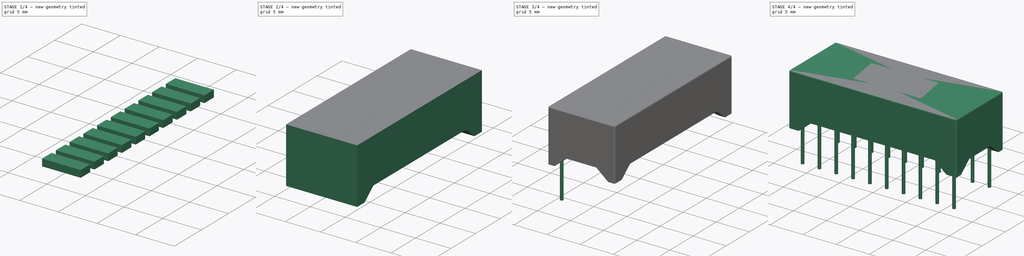
[diagram: build sequence overview — one tinted view per stage of 4, left to right]
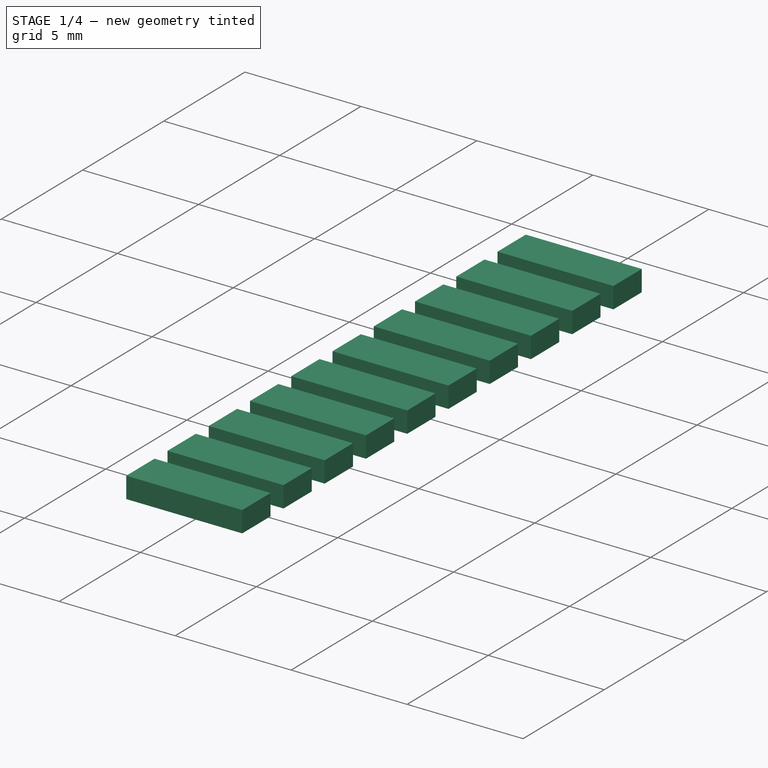
[diagram: stage 1 of 4 — iso view after this stage's code; geometry added in this stage tinted green]
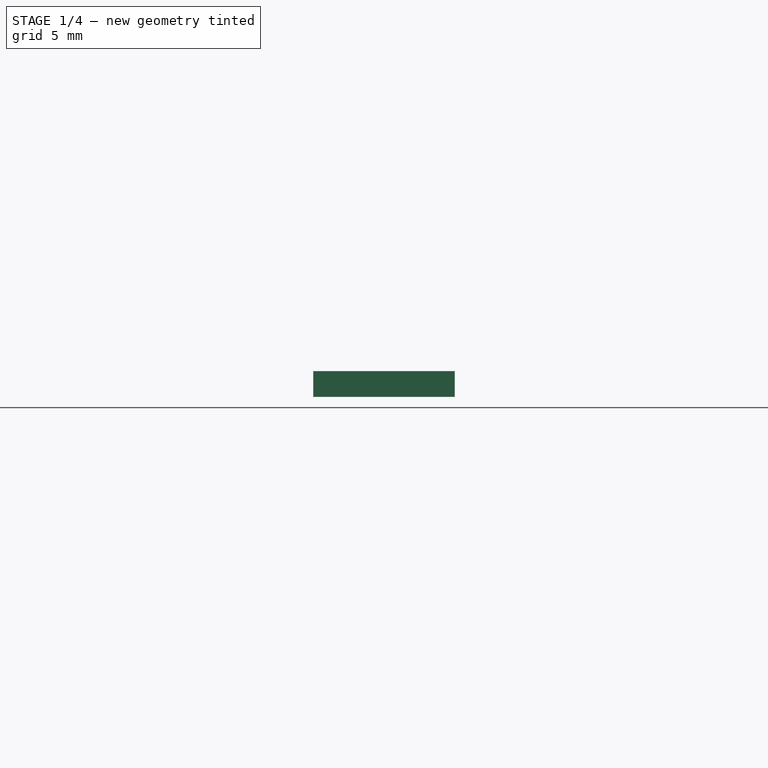
[diagram: stage 1 of 4 — front view after this stage's code; geometry added in this stage tinted green]
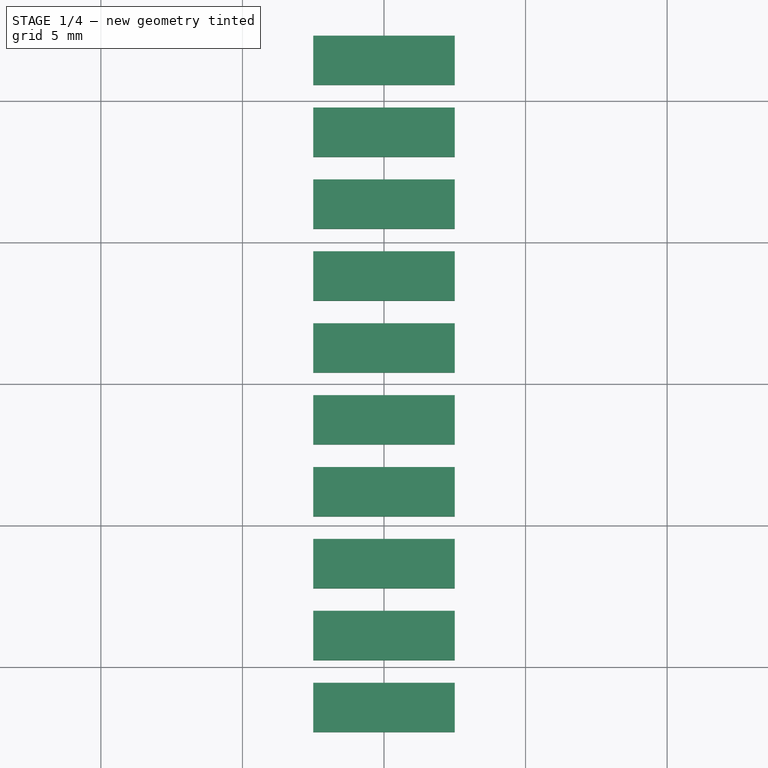
[diagram: stage 1 of 4 — top view after this stage's code; geometry added in this stage tinted green]
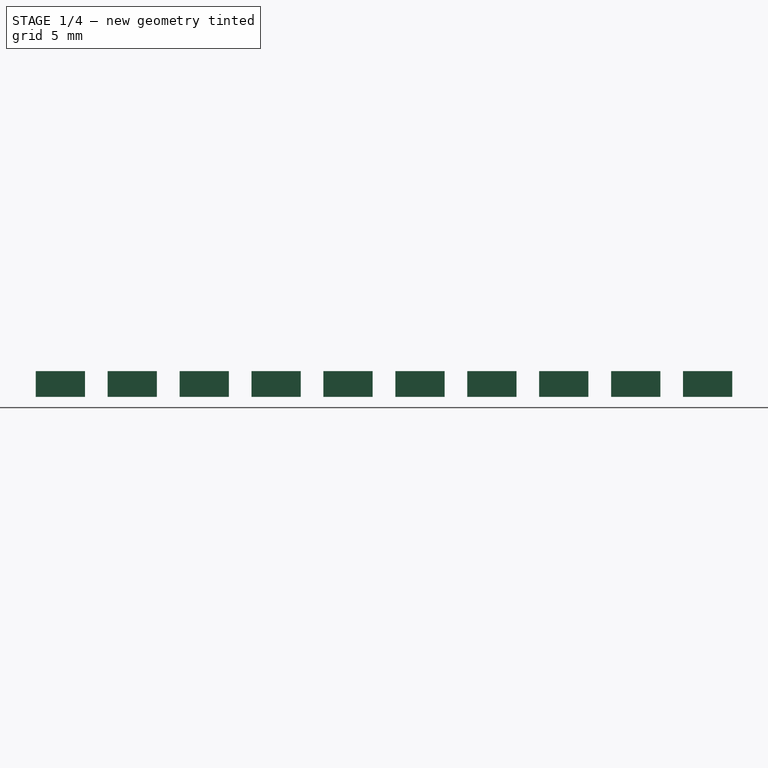
[diagram: stage 1 of 4 — right view after this stage's code; geometry added in this stage tinted green]
FCSTD DOCUMENT  (FreeCAD 0.16R6707 (Git))
Label: bargraph
License: CreativeCommons Attribution-ShareAlike
LicenseURL: http://creativecommons.org/licenses/by-sa/4.0/
objects: Part::Box×2, Sketcher::SketchObject×2, PartDesign::Pocket×2, Part::FeaturePython×2, Part::Cylinder×1, PartDesign::Fillet×1, Part::MultiFuse×1
note: 13 computed .brp shape members not serialized (recipe doc carries the construction recipe); baked Part::Feature solids carry a one-line shape summary decoded from their .brp

FEATURE [Part::Box] Box001  label="led"
  Height = 0.91
  Length = 5
  Placement = pos=(-2.5,-12.3,7) rot=(0,0,1;0rad)
  Width = 1.74
FEATURE [Part::FeaturePython] Array001  label="leds"  # Draft array (typed FeaturePython)
  Angle = 360
  ArrayType = 0
  Axis = (0,0,1)
  Base = -> Box001
  Center = (0,0,0)
  Fuse = false
  IntervalAxis = (0,0,0)
  IntervalX = (0,0,0)
  IntervalY = (0,2.54,0)
  IntervalZ = (0,0,0)
  NumberPolar = 1
  NumberX = 1
  NumberY = 10
  NumberZ = 1
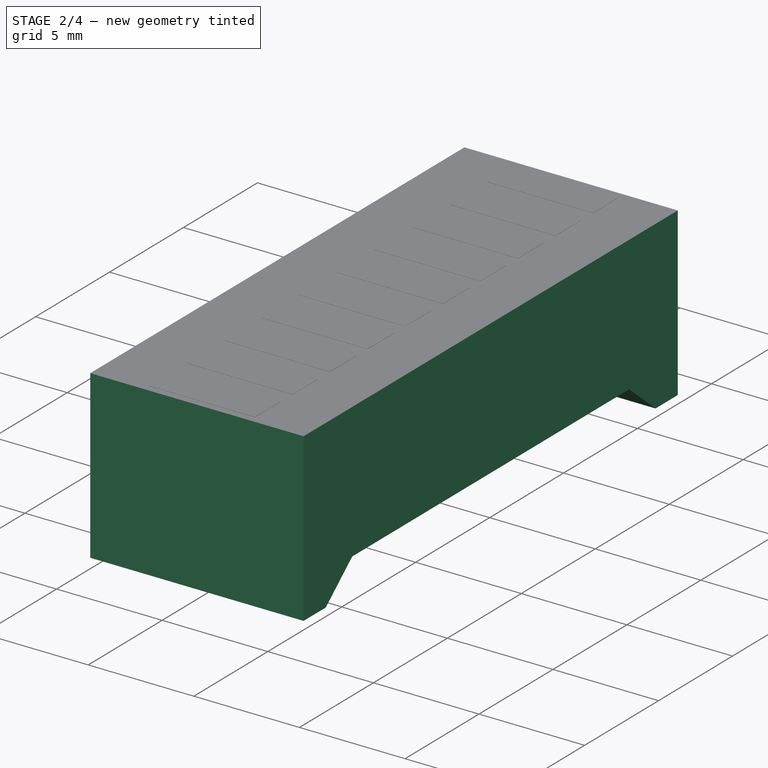
[diagram: stage 2 of 4 — iso view after this stage's code; geometry added in this stage tinted green]
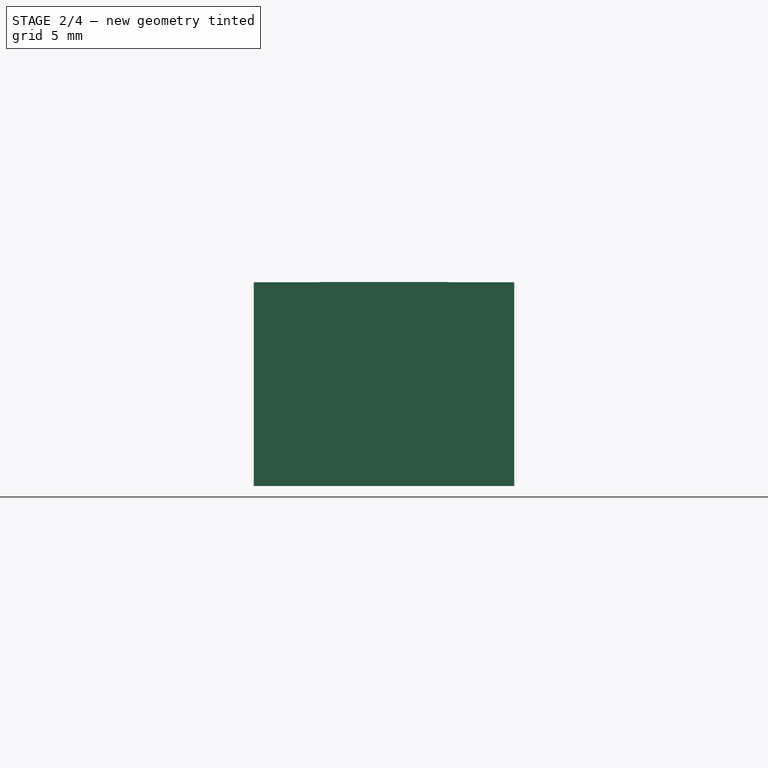
[diagram: stage 2 of 4 — front view after this stage's code; geometry added in this stage tinted green]
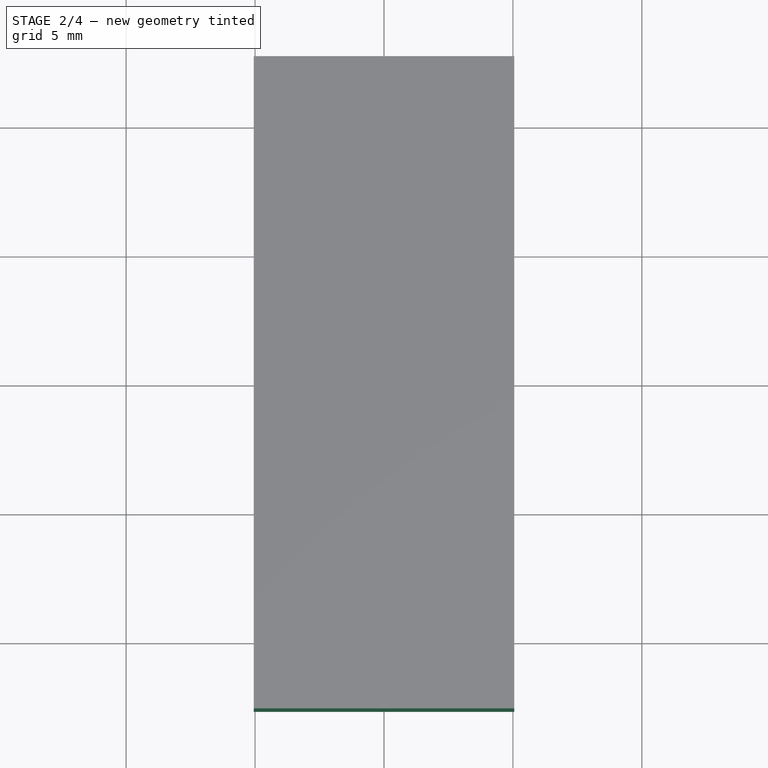
[diagram: stage 2 of 4 — top view after this stage's code; geometry added in this stage tinted green]
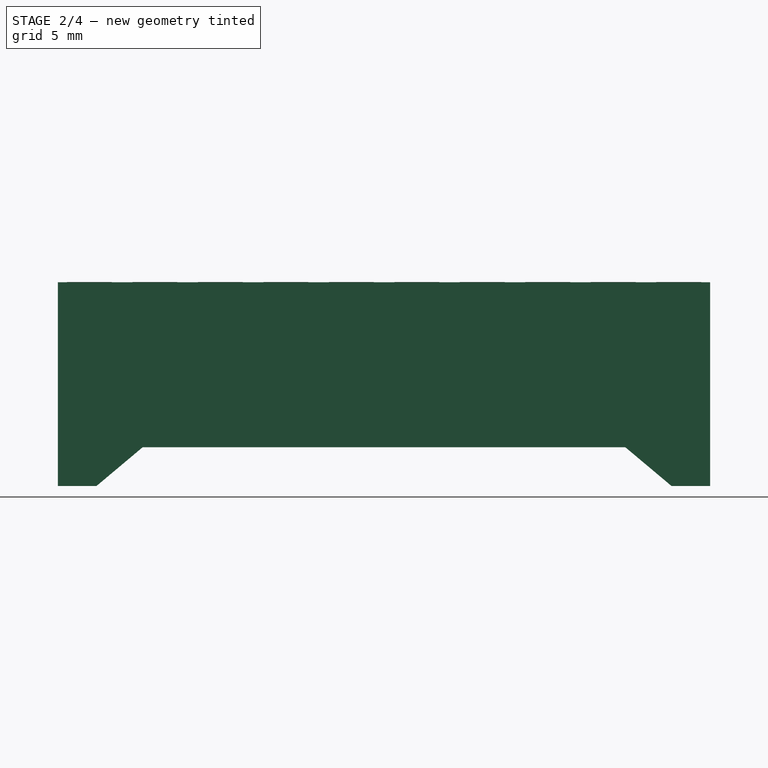
[diagram: stage 2 of 4 — right view after this stage's code; geometry added in this stage tinted green]
FEATURE [Part::Box] Box  label="Cubo"
  Height = 7.9
  Length = 10.1
  Placement = pos=(-5.05,-12.65,0) rot=(0,0,1;0rad)
  Width = 25.3
FEATURE [Sketcher::SketchObject] Sketch
  Placement = pos=(5.05,-12.65,0) rot=(0.57735,0.57735,0.57735;2.0944rad)
  Support = -> Box [Face2]
  sketch-geometry (4):
    g0: LineSegment StartX=1.5 StartY=0 StartZ=0 EndX=3.28763 EndY=1.5 EndZ=0
    g1: LineSegment StartX=3.28763 StartY=1.5 StartZ=0 EndX=22.0124 EndY=1.5 EndZ=0
    g2: LineSegment StartX=22.0124 StartY=1.5 StartZ=0 EndX=23.8 EndY=0 EndZ=0
    g3: LineSegment StartX=23.8 StartY=0 StartZ=0 EndX=1.5 EndY=0 EndZ=0
  constraints (12):
    c: PointOnObject(g0,g-1)
    c: Coincident(g0,g1)
    c: Horizontal(g1)
    c: Coincident(g1,g2)
    c: Coincident(g2,g3)
    c: Coincident(g3,g0)
    c: Horizontal(g3)
    c: DistanceX(g3,g3) = 22.3
    c: DistanceX(g-1,g0) = 1.5
    c: Angle(g3,g0) = 0.698132
    c: Angle(g2,g3) = 0.698132
    c: DistanceY(g0,g0) = 1.5
FEATURE [PartDesign::Pocket] Pocket
  Length = 5
  Placement = pos=(-5.05,-12.65,0) rot=(0,0,1;0rad)
  Sketch = -> Sketch
  Type = 1
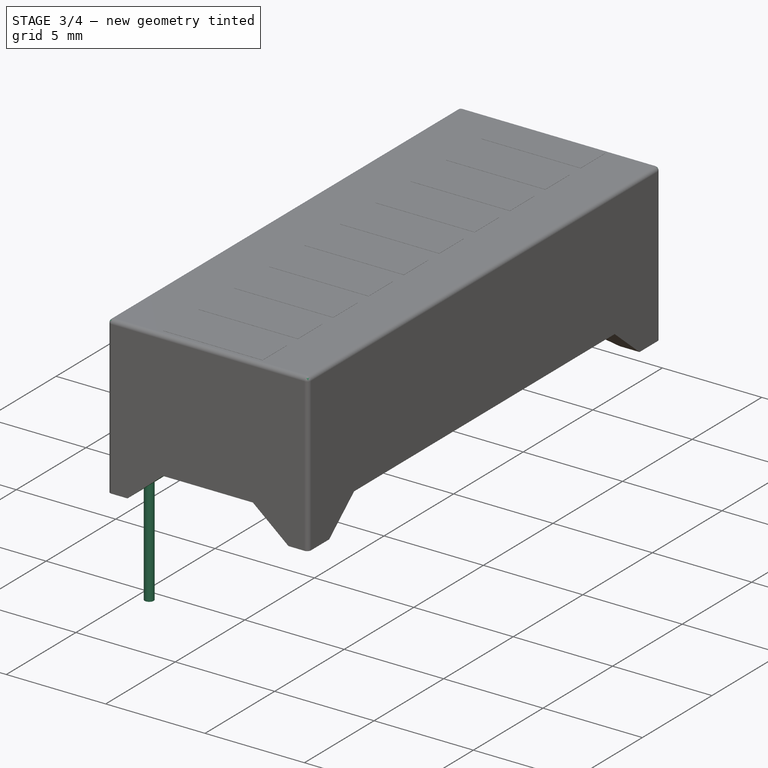
[diagram: stage 3 of 4 — iso view after this stage's code; geometry added in this stage tinted green]
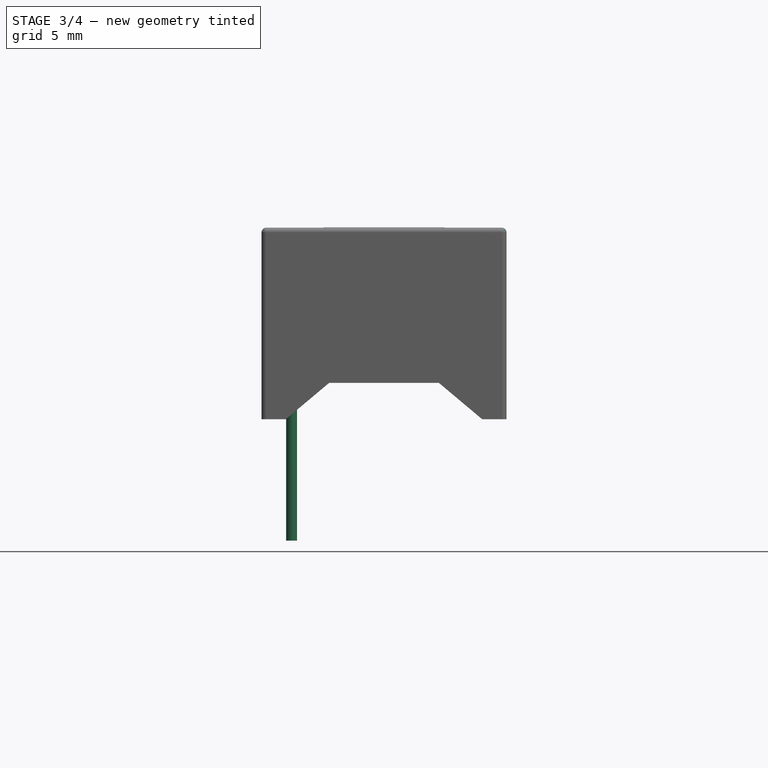
[diagram: stage 3 of 4 — front view after this stage's code; geometry added in this stage tinted green]
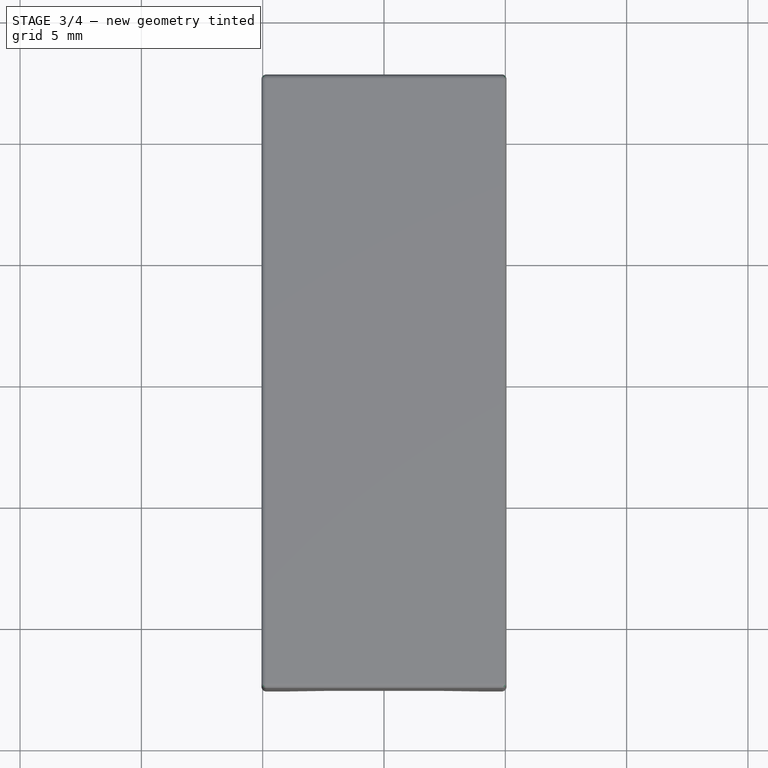
[diagram: stage 3 of 4 — top view after this stage's code; geometry added in this stage tinted green]
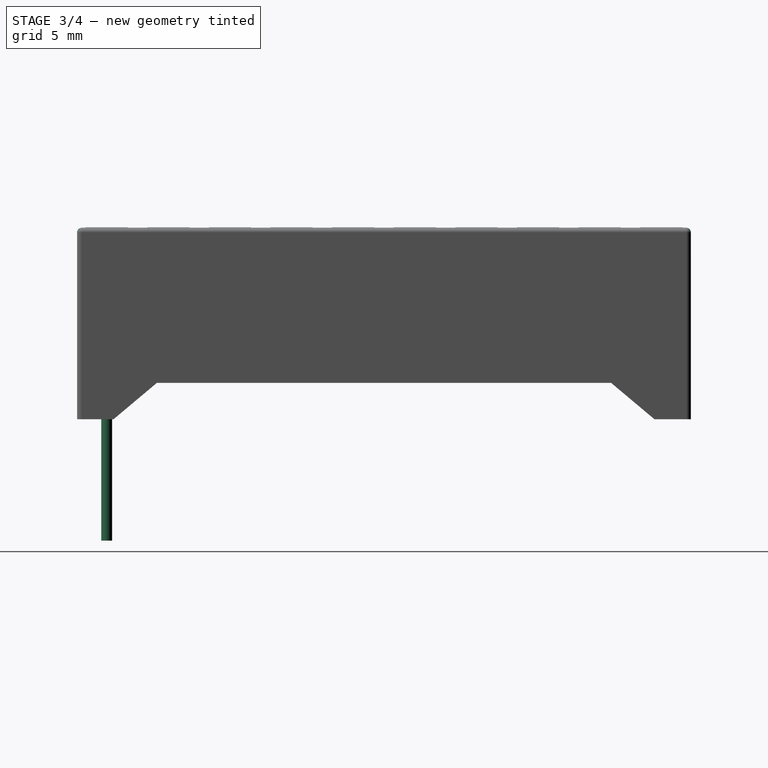
[diagram: stage 3 of 4 — right view after this stage's code; geometry added in this stage tinted green]
FEATURE [Sketcher::SketchObject] Sketch001
  Placement = pos=(-5.05,-12.65,0) rot=(1,0,0;1.5708rad)
  Support = -> Pocket [Face9]
  sketch-geometry (4):
    g0: LineSegment StartX=1 StartY=0 StartZ=0 EndX=2.78763 EndY=1.5 EndZ=0
    g1: LineSegment StartX=2.78763 StartY=1.5 StartZ=0 EndX=7.31237 EndY=1.5 EndZ=0
    g2: LineSegment StartX=7.31237 StartY=1.5 StartZ=0 EndX=9.1 EndY=0 EndZ=0
    g3: LineSegment StartX=9.1 StartY=0 StartZ=0 EndX=1 EndY=0 EndZ=0
  constraints (12):
    c: PointOnObject(g0,g-1)
    c: Coincident(g0,g1)
    c: Horizontal(g1)
    c: Coincident(g1,g2)
    c: Coincident(g2,g3)
    c: Coincident(g3,g0)
    c: Horizontal(g3)
    c: DistanceX(g-1,g0) = 1
    c: DistanceX(g3,g3) = 8.1
    c: Angle(g3,g0) = 0.698132
    c: Angle(g2,g3) = 0.698132
    c: DistanceY(g0,g0) = 1.5
FEATURE [PartDesign::Pocket] Pocket001
  Length = 5
  Placement = pos=(-5.05,-12.65,0) rot=(0,0,1;0rad)
  Sketch = -> Sketch001
  Type = 1
FEATURE [Part::Cylinder] Cylinder  label="Cilindro"
  Angle = 360
  Height = 10
  Placement = pos=(-3.81,-11.43,-5) rot=(0,0,1;0rad)
  Radius = 0.225
FEATURE [PartDesign::Fillet] Fillet  label="cuerpo"
  Base = -> Pocket001 [Edge17,Edge2,Edge9,Edge1,Edge10,Edge31,Edge11,Edge8]
  Placement = pos=(-5.05,-12.65,0) rot=(0,0,1;0rad)
  Radius = 0.2
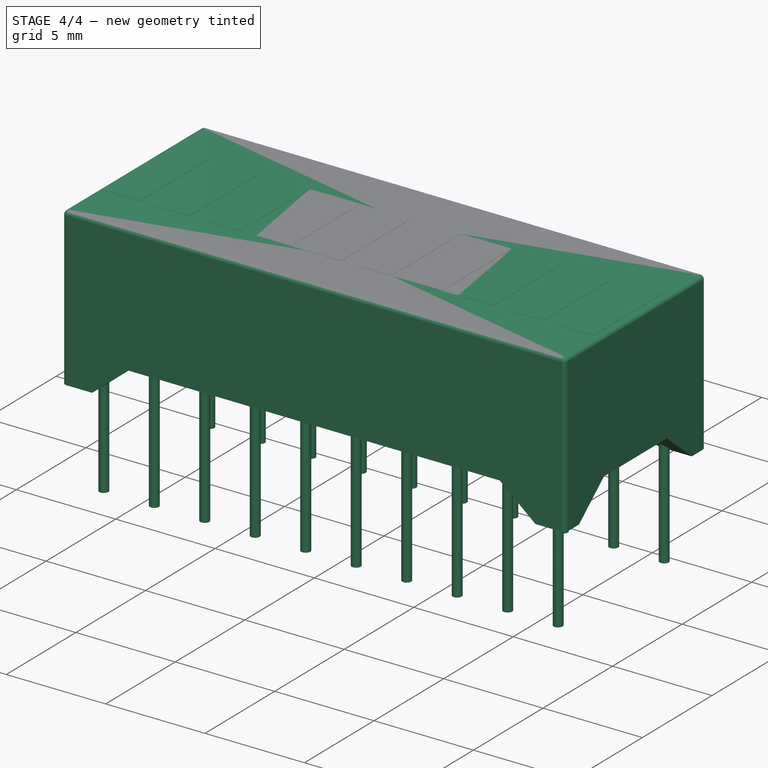
[diagram: stage 4 of 4 — iso view after this stage's code; geometry added in this stage tinted green]
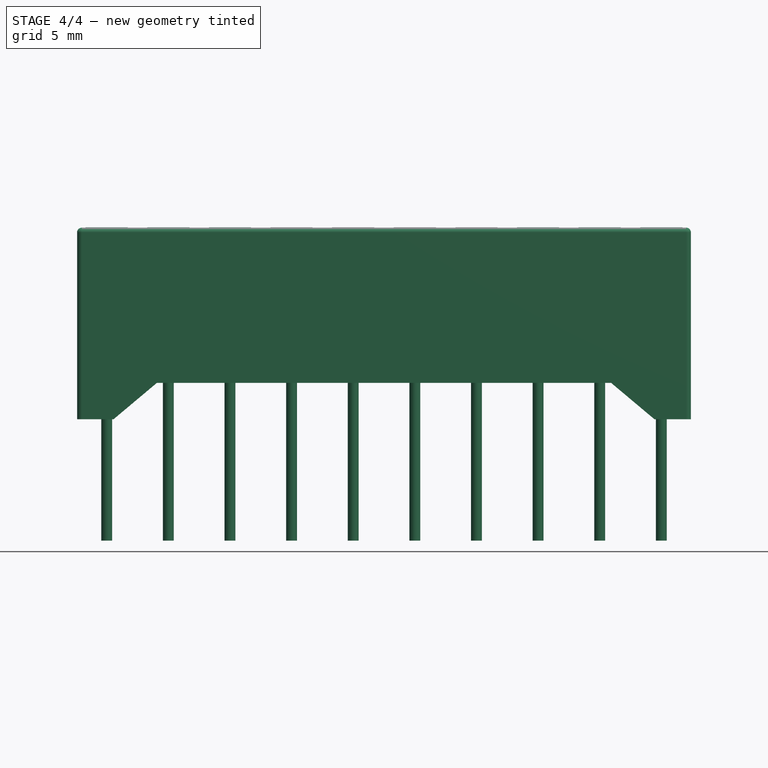
[diagram: stage 4 of 4 — front view after this stage's code; geometry added in this stage tinted green]
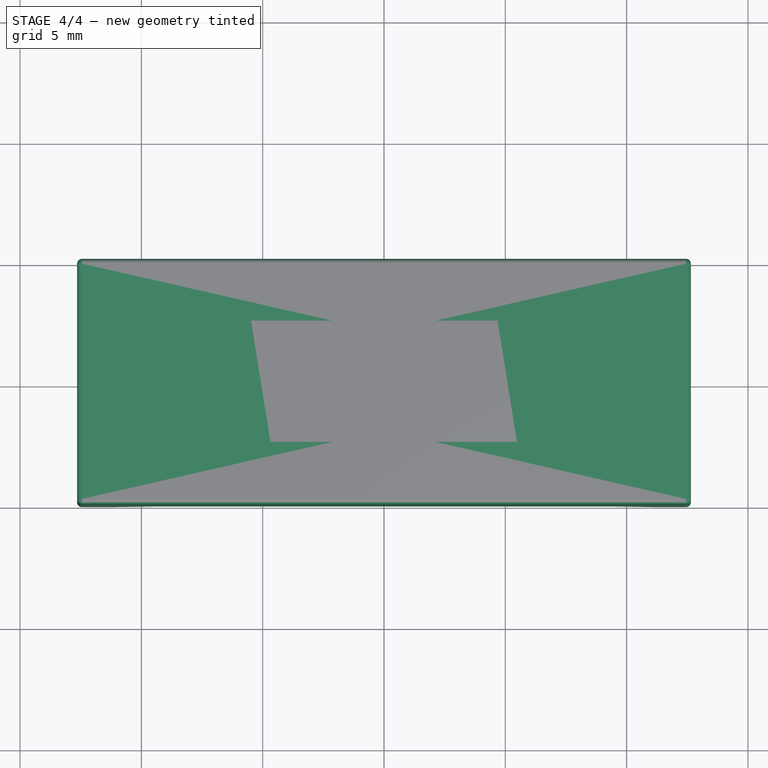
[diagram: stage 4 of 4 — top view after this stage's code; geometry added in this stage tinted green]
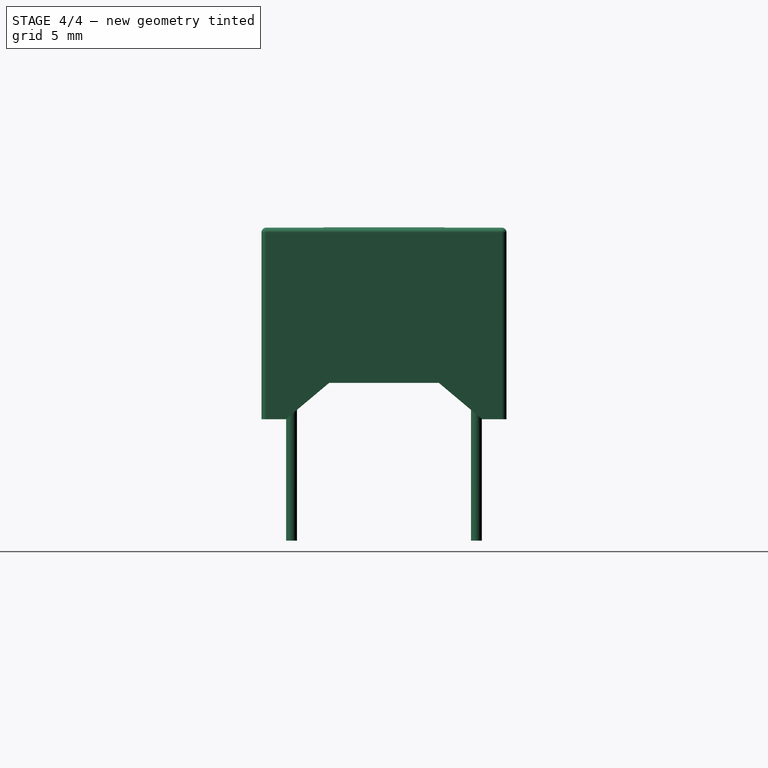
[diagram: stage 4 of 4 — right view after this stage's code; geometry added in this stage tinted green]
FEATURE [Part::FeaturePython] Array  label="pines"  # Draft array (typed FeaturePython)
  Angle = 360
  ArrayType = 0
  Axis = (0,0,1)
  Base = -> Cylinder
  Center = (0,0,0)
  Fuse = false
  IntervalAxis = (0,0,0)
  IntervalX = (7.62,0,0)
  IntervalY = (0,2.54,0)
  IntervalZ = (0,0,0)
  NumberPolar = 1
  NumberX = 2
  NumberY = 10
  NumberZ = 1
FEATURE [Part::MultiFuse] Fusion
  Placement = pos=(0,0,0) rot=(0,0,1;1.5708rad)
  Shapes = -> [Fillet,Array001,Array]
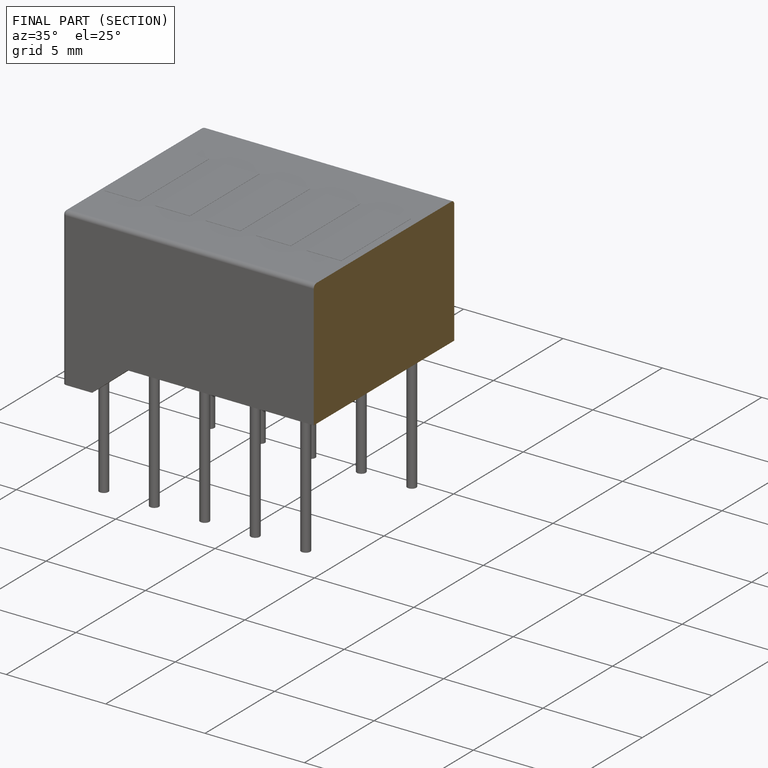
[diagram: finished part — half-section view (interior)]
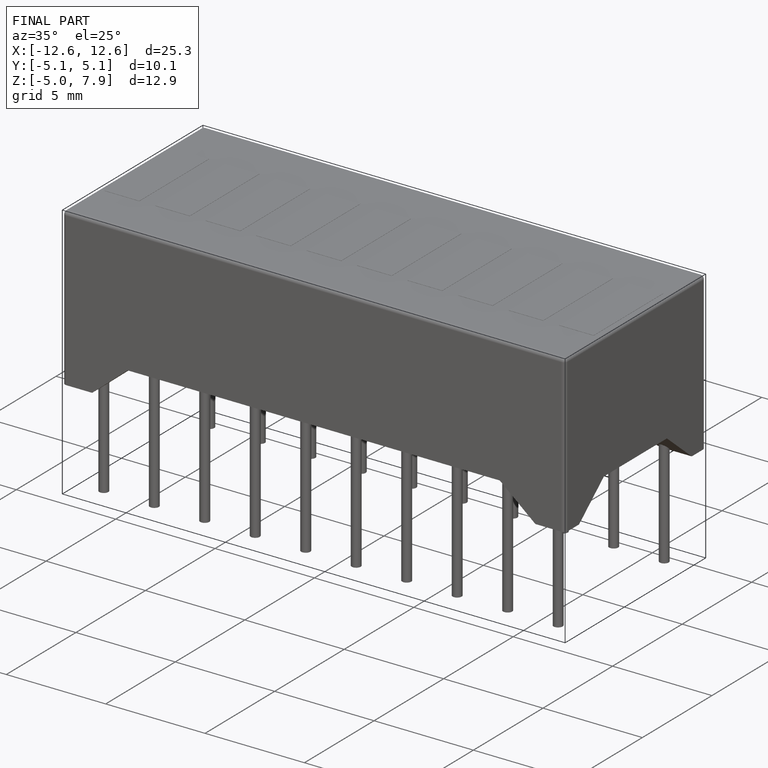
[diagram: finished part — iso view with bounding-box wireframe]
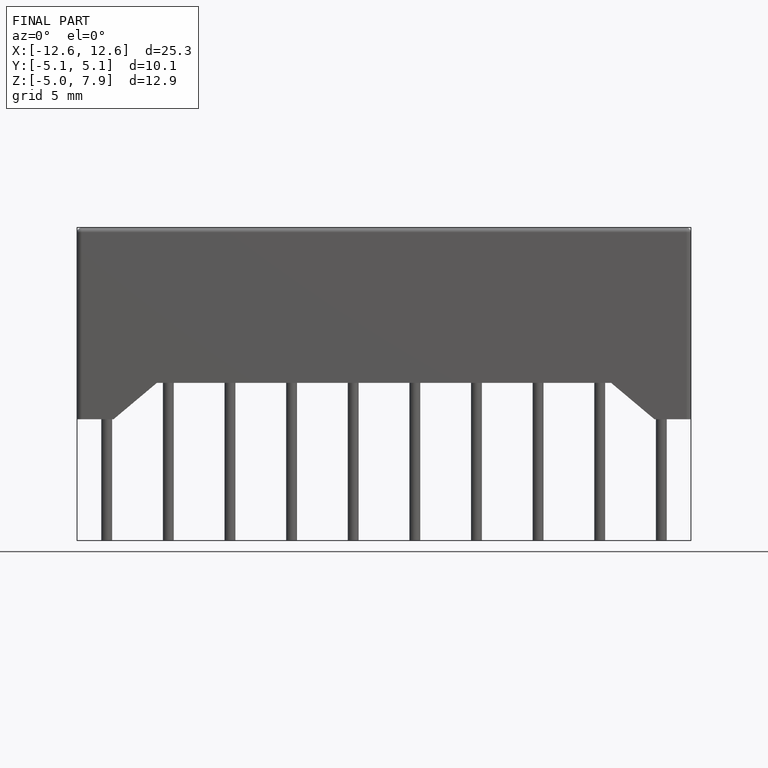
[diagram: finished part — front view with bounding-box wireframe]
